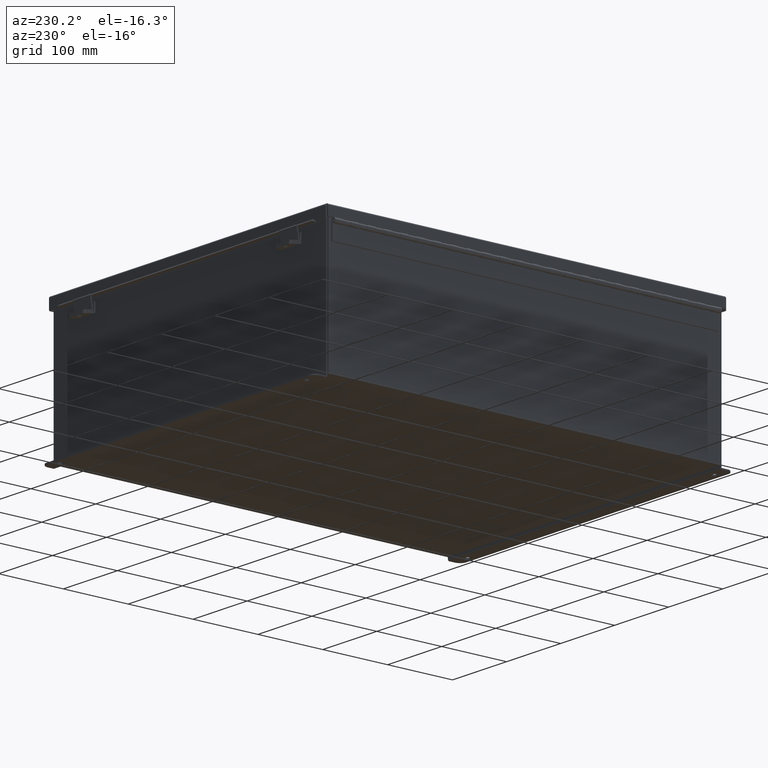
[diagram: clean part render]
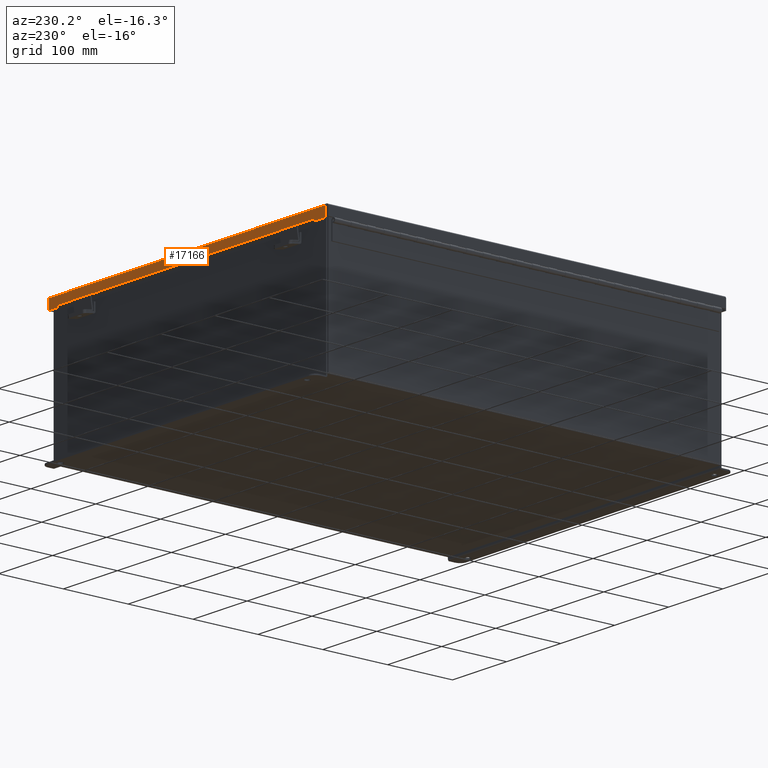
[diagram: same view with one face highlighted and labeled with its STEP entity id]
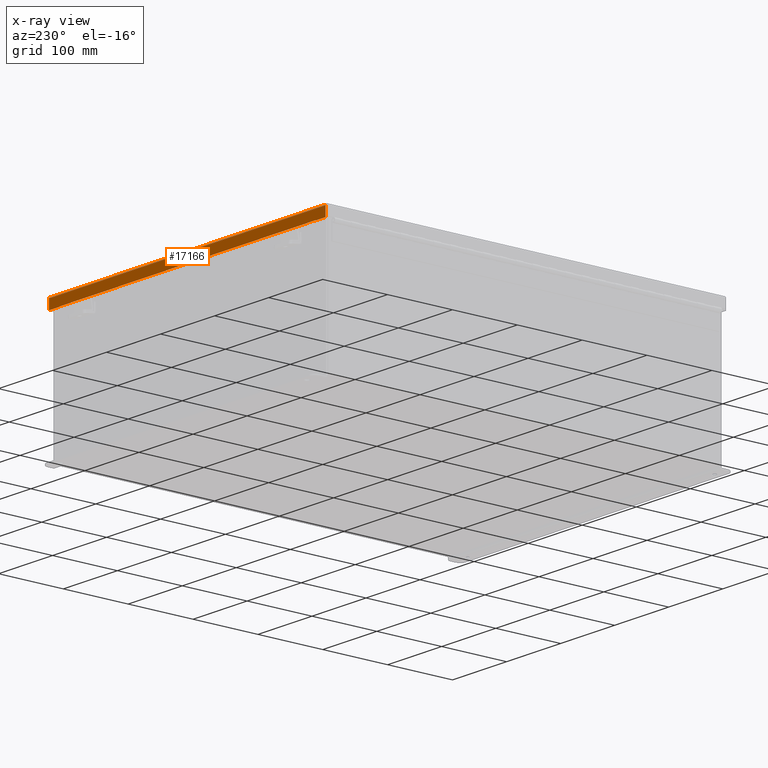
[diagram: x-ray of the same camera — body ghosted, the highlighted face saturated]
A machine part, auxiliary view. The second image highlights one B-rep face of the part: STEP entity #17166.
The next image is the same camera in x-ray: the body ghosted, the highlighted face saturated — about 0% of this face is hidden behind the body in this view.
In plain terms, the highlighted planar face has unit normal (-0, -1, -0).
Its self-contained STEP definition (entity closure, byte-faithful):
#19 = VECTOR ( 'NONE', #9407, 39.37007874015748100 ) ;
#133 = DIRECTION ( 'NONE',  ( -0.0000000000000000000, 3.569293475308532400E-015, 1.000000000000000000 ) ) ;
#480 = VECTOR ( 'NONE', #2282, 39.37007874015748100 ) ;
#758 = EDGE_CURVE ( 'NONE', #22885, #19862, #14303, .T. ) ;
#1088 = LINE ( 'NONE', #5985, #480 ) ;
#1334 = VECTOR ( 'NONE', #18018, 39.37007874015748100 ) ;
#2282 = DIRECTION ( 'NONE',  ( 1.000000000000000000, 3.215975411700707400E-030, -0.0000000000000000000 ) ) ;
#2701 = VERTEX_POINT ( 'NONE', #8944 ) ;
#2803 = LINE ( 'NONE', #7886, #22552 ) ;
#3690 = VERTEX_POINT ( 'NONE', #19765 ) ;
#4150 = VECTOR ( 'NONE', #7697, 39.37007874015748100 ) ;
#4189 = CARTESIAN_POINT ( 'NONE',  ( 0.0000000000000000000, 12.15625000000000000, -4.370956789862821100E-014 ) ) ;
#4629 = ORIENTED_EDGE ( 'NONE', *, *, #18631, .T. ) ;
#4764 = EDGE_CURVE ( 'NONE', #14610, #19862, #6392, .T. ) ;
#4900 = EDGE_CURVE ( 'NONE', #2701, #18906, #13597, .T. ) ;
#5083 = LINE ( 'NONE', #7479, #19 ) ;
#5985 = CARTESIAN_POINT ( 'NONE',  ( 10.15625000000003600, 12.15625000000000000, 0.01300000000000010700 ) ) ;
#6390 = DIRECTION ( 'NONE',  ( -1.000000000000000000, -3.215975411700707400E-030, -0.0000000000000000000 ) ) ;
#6392 = LINE ( 'NONE', #10078, #1334 ) ;
#6902 = VERTEX_POINT ( 'NONE', #22151 ) ;
#6944 = ORIENTED_EDGE ( 'NONE', *, *, #758, .T. ) ;
#7390 = EDGE_CURVE ( 'NONE', #22423, #14610, #14060, .T. ) ;
#7479 = CARTESIAN_POINT ( 'NONE',  ( 9.324478932188171100, 12.15625000000000200, 0.6122999999999994000 ) ) ;
#7697 = DIRECTION ( 'NONE',  ( 1.000000000000000000, 3.215538059845590000E-030, 3.362274453740340600E-018 ) ) ;
#7886 = CARTESIAN_POINT ( 'NONE',  ( 10.07447893218817100, 12.15625000000000000, 0.0000000000000000000 ) ) ;
#8483 = VECTOR ( 'NONE', #19099, 39.37007874015748100 ) ;
#8544 = EDGE_CURVE ( 'NONE', #2701, #22423, #5083, .T. ) ;
#8944 = CARTESIAN_POINT ( 'NONE',  ( 9.324478932188171100, 12.15625000000000200, 0.6122999999999994000 ) ) ;
#9335 = CARTESIAN_POINT ( 'NONE',  ( 10.07447893218817100, 12.15625000000000200, 0.6122999999999994000 ) ) ;
#9407 = DIRECTION ( 'NONE',  ( 7.009925220121354700E-014, 1.401985044024265100E-013, -1.000000000000000000 ) ) ;
#9928 = DIRECTION ( 'NONE',  ( -3.347543324056399800E-030, -1.000000000000000000, 3.569293475308532400E-015 ) ) ;
#10078 = CARTESIAN_POINT ( 'NONE',  ( -9.324478932188164000, 12.15625000000000400, 0.5967115427318815400 ) ) ;
#10151 = CARTESIAN_POINT ( 'NONE',  ( 9.324478932188171100, 12.15625000000000400, 0.5967115427318815400 ) ) ;
#10523 = CARTESIAN_POINT ( 'NONE',  ( -10.07447893218816600, 12.15625000000000000, -4.370956789862821100E-014 ) ) ;
#11170 = LINE ( 'NONE', #10523, #20767 ) ;
#11802 = ORIENTED_EDGE ( 'NONE', *, *, #7390, .F. ) ;
#12441 = DIRECTION ( 'NONE',  ( 0.0000000000000000000, 3.569293475308532400E-015, 1.000000000000000000 ) ) ;
#13597 = LINE ( 'NONE', #20552, #8483 ) ;
#14060 = LINE ( 'NONE', #10151, #23070 ) ;
#14089 = EDGE_CURVE ( 'NONE', #3690, #18906, #2803, .T. ) ;
#14303 = LINE ( 'NONE', #24064, #4150 ) ;
#14323 = CARTESIAN_POINT ( 'NONE',  ( -9.324478932188165800, 12.15625000000000200, 0.6123000000000005100 ) ) ;
#14610 = VERTEX_POINT ( 'NONE', #18814 ) ;
#15866 = CARTESIAN_POINT ( 'NONE',  ( 9.324478932188171100, 12.15625000000000400, 0.5967115427318815400 ) ) ;
#16030 = ORIENTED_EDGE ( 'NONE', *, *, #14089, .F. ) ;
#17146 = EDGE_CURVE ( 'NONE', #6902, #3690, #1088, .T. ) ;
#17166 = ADVANCED_FACE ( 'NONE', ( #20218 ), #17532, .F. ) ;
#17532 = PLANE ( 'NONE',  #19818 ) ;
#18018 = DIRECTION ( 'NONE',  ( -7.009925220121077000E-014, -1.401985044024209900E-013, 1.000000000000000000 ) ) ;
#18631 = EDGE_CURVE ( 'NONE', #6902, #22885, #11170, .T. ) ;
#18814 = CARTESIAN_POINT ( 'NONE',  ( -9.324478932188164000, 12.15625000000000200, 0.5967115427318815400 ) ) ;
#18906 = VERTEX_POINT ( 'NONE', #9335 ) ;
#19099 = DIRECTION ( 'NONE',  ( 1.000000000000000000, 3.215538059845590000E-030, 3.362274453740340600E-018 ) ) ;
#19765 = CARTESIAN_POINT ( 'NONE',  ( 10.07447893218817100, 12.15625000000000000, 0.01300000000000010700 ) ) ;
#19818 = AXIS2_PLACEMENT_3D ( 'NONE', #4189, #9928, #23341 ) ;
#19862 = VERTEX_POINT ( 'NONE', #14323 ) ;
#19924 = ORIENTED_EDGE ( 'NONE', *, *, #17146, .F. ) ;
#20218 = FACE_OUTER_BOUND ( 'NONE', #24538, .T. ) ;
#20552 = CARTESIAN_POINT ( 'NONE',  ( -2.134256245050205600E-018, 12.15625000000000200, 0.6122999999999994000 ) ) ;
#20767 = VECTOR ( 'NONE', #12441, 39.37007874015748100 ) ;
#21529 = ORIENTED_EDGE ( 'NONE', *, *, #8544, .F. ) ;
#22151 = CARTESIAN_POINT ( 'NONE',  ( -10.07447893218816600, 12.15625000000000000, 0.01300000000000010700 ) ) ;
#22423 = VERTEX_POINT ( 'NONE', #15866 ) ;
#22534 = ORIENTED_EDGE ( 'NONE', *, *, #4764, .F. ) ;
#22552 = VECTOR ( 'NONE', #133, 39.37007874015748100 ) ;
#22885 = VERTEX_POINT ( 'NONE', #23091 ) ;
#23070 = VECTOR ( 'NONE', #6390, 39.37007874015748100 ) ;
#23091 = CARTESIAN_POINT ( 'NONE',  ( -10.07447893218816600, 12.15625000000000200, 0.6123000000000005100 ) ) ;
#23145 = ORIENTED_EDGE ( 'NONE', *, *, #4900, .T. ) ;
#23341 = DIRECTION ( 'NONE',  ( 0.0000000000000000000, -3.569293475308532400E-015, -1.000000000000000000 ) ) ;
#24064 = CARTESIAN_POINT ( 'NONE',  ( -2.134256245050205600E-018, 12.15625000000000200, 0.6122999999999994000 ) ) ;
#24538 = EDGE_LOOP ( 'NONE', ( #21529, #23145, #16030, #19924, #4629, #6944, #22534, #11802 ) ) ;